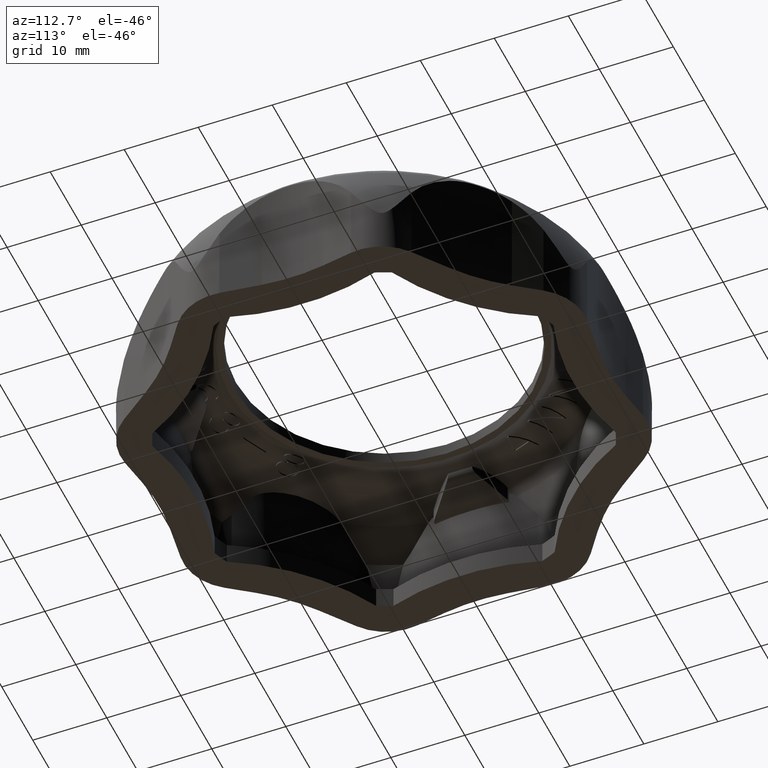
[diagram: clean part render]
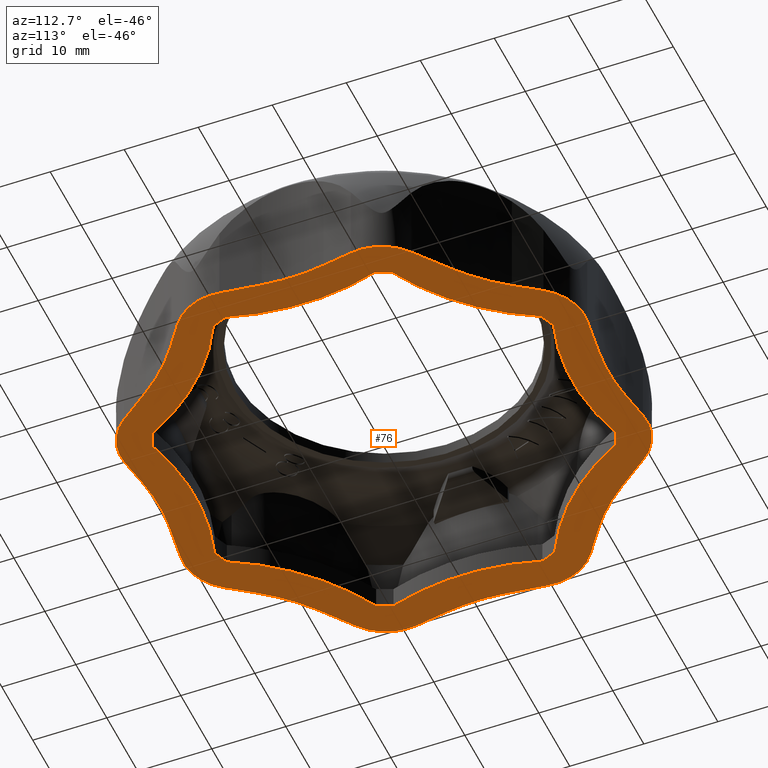
[diagram: same view with one face highlighted and labeled with its STEP entity id]
A machine part, auxiliary view. The second image highlights one B-rep face of the part: STEP entity #76.
In plain terms, the highlighted planar face has unit normal (0, -0, 1).
Its self-contained STEP definition (entity closure, byte-faithful):
#76 = ADVANCED_FACE( '', ( #2431, #2432 ), #2433, .F. );
#2431 = FACE_BOUND( '', #7166, .T. );
#2432 = FACE_OUTER_BOUND( '', #7167, .T. );
#2433 = PLANE( '', #7168 );
#7166 = EDGE_LOOP( '', ( #12139, #12140, #12141, #12142, #12143, #12144, #12145, #12146, #12147, #12148, #12149, #12150, #12151, #12152, #12153, #12154 ) );
#7167 = EDGE_LOOP( '', ( #12155, #12156, #12157, #12158, #12159, #12160, #12161, #12162, #12163, #12164, #12165, #12166, #12167, #12168, #12169, #12170, #12171, #12172, #12173, #12174, #12175, #12176, #12177, #12178, #12179, #12180, #12181, #12182, #12183, #12184, #12185, #12186 ) );
#7168 = AXIS2_PLACEMENT_3D( '', #12187, #12188, #12189 );
#12139 = ORIENTED_EDGE( '', *, *, #33097, .T. );
#12140 = ORIENTED_EDGE( '', *, *, #33098, .T. );
#12141 = ORIENTED_EDGE( '', *, *, #33099, .T. );
#12142 = ORIENTED_EDGE( '', *, *, #33100, .T. );
#12143 = ORIENTED_EDGE( '', *, *, #33101, .T. );
#12144 = ORIENTED_EDGE( '', *, *, #33102, .T. );
#12145 = ORIENTED_EDGE( '', *, *, #33103, .T. );
#12146 = ORIENTED_EDGE( '', *, *, #33104, .T. );
#12147 = ORIENTED_EDGE( '', *, *, #33105, .T. );
#12148 = ORIENTED_EDGE( '', *, *, #33106, .T. );
#12149 = ORIENTED_EDGE( '', *, *, #33107, .T. );
#12150 = ORIENTED_EDGE( '', *, *, #33108, .T. );
#12151 = ORIENTED_EDGE( '', *, *, #33109, .T. );
#12152 = ORIENTED_EDGE( '', *, *, #33110, .T. );
#12153 = ORIENTED_EDGE( '', *, *, #33111, .T. );
#12154 = ORIENTED_EDGE( '', *, *, #33112, .T. );
#12155 = ORIENTED_EDGE( '', *, *, #33113, .F. );
#12156 = ORIENTED_EDGE( '', *, *, #33114, .F. );
#12157 = ORIENTED_EDGE( '', *, *, #33115, .F. );
#12158 = ORIENTED_EDGE( '', *, *, #33116, .F. );
#12159 = ORIENTED_EDGE( '', *, *, #33117, .F. );
#12160 = ORIENTED_EDGE( '', *, *, #33118, .F. );
#12161 = ORIENTED_EDGE( '', *, *, #33119, .F. );
#12162 = ORIENTED_EDGE( '', *, *, #33120, .F. );
#12163 = ORIENTED_EDGE( '', *, *, #33121, .F. );
#12164 = ORIENTED_EDGE( '', *, *, #33122, .F. );
#12165 = ORIENTED_EDGE( '', *, *, #33123, .F. );
#12166 = ORIENTED_EDGE( '', *, *, #33124, .F. );
#12167 = ORIENTED_EDGE( '', *, *, #33125, .F. );
#12168 = ORIENTED_EDGE( '', *, *, #33126, .F. );
#12169 = ORIENTED_EDGE( '', *, *, #33127, .F. );
#12170 = ORIENTED_EDGE( '', *, *, #33128, .F. );
#12171 = ORIENTED_EDGE( '', *, *, #33129, .F. );
#12172 = ORIENTED_EDGE( '', *, *, #33130, .F. );
#12173 = ORIENTED_EDGE( '', *, *, #33131, .F. );
#12174 = ORIENTED_EDGE( '', *, *, #33132, .F. );
#12175 = ORIENTED_EDGE( '', *, *, #33133, .F. );
#12176 = ORIENTED_EDGE( '', *, *, #33134, .F. );
#12177 = ORIENTED_EDGE( '', *, *, #33135, .F. );
#12178 = ORIENTED_EDGE( '', *, *, #33136, .F. );
#12179 = ORIENTED_EDGE( '', *, *, #33137, .F. );
#12180 = ORIENTED_EDGE( '', *, *, #33138, .F. );
#12181 = ORIENTED_EDGE( '', *, *, #33139, .F. );
#12182 = ORIENTED_EDGE( '', *, *, #33140, .F. );
#12183 = ORIENTED_EDGE( '', *, *, #33141, .F. );
#12184 = ORIENTED_EDGE( '', *, *, #33142, .F. );
#12185 = ORIENTED_EDGE( '', *, *, #33143, .F. );
#12186 = ORIENTED_EDGE( '', *, *, #33144, .F. );
#12187 = CARTESIAN_POINT( '', ( 0.000000000000000, 0.000000000000000, -3.88386123990891E-005 ) );
#12188 = DIRECTION( '', ( 2.34318281388423E-017, -5.65694372839885E-017, 1.00000000000000 ) );
#12189 = DIRECTION( '', ( 0.382683432365090, -0.923879532511287, -6.12303176911189E-017 ) );
#33097 = EDGE_CURVE( '', #40121, #40122, #40123, .T. );
#33098 = EDGE_CURVE( '', #40122, #40124, #40125, .F. );
#33099 = EDGE_CURVE( '', #40124, #40126, #40127, .T. );
#33100 = EDGE_CURVE( '', #40126, #40128, #40129, .F. );
#33101 = EDGE_CURVE( '', #40128, #40130, #40131, .T. );
#33102 = EDGE_CURVE( '', #40130, #40132, #40133, .F. );
#33103 = EDGE_CURVE( '', #40132, #40134, #40135, .T. );
#33104 = EDGE_CURVE( '', #40134, #40136, #40137, .F. );
#33105 = EDGE_CURVE( '', #40136, #40138, #40139, .T. );
#33106 = EDGE_CURVE( '', #40138, #40140, #40141, .F. );
#33107 = EDGE_CURVE( '', #40140, #40142, #40143, .T. );
#33108 = EDGE_CURVE( '', #40142, #40144, #40145, .F. );
#33109 = EDGE_CURVE( '', #40144, #40146, #40147, .T. );
#33110 = EDGE_CURVE( '', #40146, #40148, #40149, .F. );
#33111 = EDGE_CURVE( '', #40148, #40150, #40151, .T. );
#33112 = EDGE_CURVE( '', #40150, #40121, #40152, .F. );
#33113 = EDGE_CURVE( '', #40153, #40154, #40155, .T. );
#33114 = EDGE_CURVE( '', #40156, #40153, #40157, .T. );
#33115 = EDGE_CURVE( '', #40158, #40156, #40159, .T. );
#33116 = EDGE_CURVE( '', #40160, #40158, #40161, .F. );
#33117 = EDGE_CURVE( '', #40162, #40160, #40163, .T. );
#33118 = EDGE_CURVE( '', #40164, #40162, #40165, .T. );
#33119 = EDGE_CURVE( '', #40166, #40164, #40167, .T. );
#33120 = EDGE_CURVE( '', #40168, #40166, #40169, .F. );
#33121 = EDGE_CURVE( '', #40170, #40168, #40171, .T. );
#33122 = EDGE_CURVE( '', #40172, #40170, #40173, .T. );
#33123 = EDGE_CURVE( '', #40174, #40172, #40175, .T. );
#33124 = EDGE_CURVE( '', #40176, #40174, #40177, .F. );
#33125 = EDGE_CURVE( '', #40178, #40176, #40179, .T. );
#33126 = EDGE_CURVE( '', #40180, #40178, #40181, .T. );
#33127 = EDGE_CURVE( '', #40182, #40180, #40183, .T. );
#33128 = EDGE_CURVE( '', #40184, #40182, #40185, .F. );
#33129 = EDGE_CURVE( '', #40186, #40184, #40187, .T. );
#33130 = EDGE_CURVE( '', #40188, #40186, #40189, .T. );
#33131 = EDGE_CURVE( '', #40190, #40188, #40191, .T. );
#33132 = EDGE_CURVE( '', #40192, #40190, #40193, .F. );
#33133 = EDGE_CURVE( '', #40194, #40192, #40195, .T. );
#33134 = EDGE_CURVE( '', #40196, #40194, #40197, .T. );
#33135 = EDGE_CURVE( '', #40198, #40196, #40199, .T. );
#33136 = EDGE_CURVE( '', #40200, #40198, #40201, .F. );
#33137 = EDGE_CURVE( '', #40202, #40200, #40203, .T. );
#33138 = EDGE_CURVE( '', #40204, #40202, #40205, .T. );
#33139 = EDGE_CURVE( '', #40206, #40204, #40207, .T. );
#33140 = EDGE_CURVE( '', #40208, #40206, #40209, .F. );
#33141 = EDGE_CURVE( '', #40210, #40208, #40211, .T. );
#33142 = EDGE_CURVE( '', #40212, #40210, #40213, .T. );
#33143 = EDGE_CURVE( '', #40214, #40212, #40215, .T. );
#33144 = EDGE_CURVE( '', #40154, #40214, #40216, .F. );
#40121 = VERTEX_POINT( '', #51906 );
#40122 = VERTEX_POINT( '', #51907 );
#40123 = CIRCLE( '', #51908, 28.9000000000000 );
#40124 = VERTEX_POINT( '', #51909 );
#40125 = CIRCLE( '', #51910, 32.5000000000000 );
#40126 = VERTEX_POINT( '', #51911 );
#40127 = CIRCLE( '', #51912, 28.9000000000000 );
#40128 = VERTEX_POINT( '', #51913 );
#40129 = CIRCLE( '', #51914, 32.5000000000000 );
#40130 = VERTEX_POINT( '', #51915 );
#40131 = CIRCLE( '', #51916, 28.9000000000000 );
#40132 = VERTEX_POINT( '', #51917 );
#40133 = CIRCLE( '', #51918, 32.5000000000000 );
#40134 = VERTEX_POINT( '', #51919 );
#40135 = CIRCLE( '', #51920, 28.9000000000000 );
#40136 = VERTEX_POINT( '', #51921 );
#40137 = CIRCLE( '', #51922, 32.5000000000000 );
#40138 = VERTEX_POINT( '', #51923 );
#40139 = CIRCLE( '', #51924, 28.9000000000000 );
#40140 = VERTEX_POINT( '', #51925 );
#40141 = CIRCLE( '', #51926, 32.5000000000000 );
#40142 = VERTEX_POINT( '', #51927 );
#40143 = CIRCLE( '', #51928, 28.8999999999996 );
#40144 = VERTEX_POINT( '', #51929 );
#40145 = CIRCLE( '', #51930, 32.5000000000000 );
#40146 = VERTEX_POINT( '', #51931 );
#40147 = CIRCLE( '', #51932, 28.9000000000000 );
#40148 = VERTEX_POINT( '', #51933 );
#40149 = CIRCLE( '', #51934, 32.5000000000000 );
#40150 = VERTEX_POINT( '', #51935 );
#40151 = CIRCLE( '', #51936, 28.9000000000000 );
#40152 = CIRCLE( '', #51937, 32.5000000000000 );
#40153 = VERTEX_POINT( '', #51938 );
#40154 = VERTEX_POINT( '', #51939 );
#40155 = LINE( '', #51940, #51941 );
#40156 = VERTEX_POINT( '', #51942 );
#40157 = CIRCLE( '', #51943, 7.30000000000000 );
#40158 = VERTEX_POINT( '', #51944 );
#40159 = LINE( '', #51945, #51946 );
#40160 = VERTEX_POINT( '', #51947 );
#40161 = CIRCLE( '', #51948, 27.7000000000000 );
#40162 = VERTEX_POINT( '', #51949 );
#40163 = LINE( '', #51950, #51951 );
#40164 = VERTEX_POINT( '', #51952 );
#40165 = CIRCLE( '', #51953, 7.30000000000000 );
#40166 = VERTEX_POINT( '', #51954 );
#40167 = LINE( '', #51955, #51956 );
#40168 = VERTEX_POINT( '', #51957 );
#40169 = CIRCLE( '', #51958, 27.7000000000000 );
#40170 = VERTEX_POINT( '', #51959 );
#40171 = LINE( '', #51960, #51961 );
#40172 = VERTEX_POINT( '', #51962 );
#40173 = CIRCLE( '', #51963, 7.30000000000000 );
#40174 = VERTEX_POINT( '', #51964 );
#40175 = LINE( '', #51965, #51966 );
#40176 = VERTEX_POINT( '', #51967 );
#40177 = CIRCLE( '', #51968, 27.7000000000000 );
#40178 = VERTEX_POINT( '', #51969 );
#40179 = LINE( '', #51970, #51971 );
#40180 = VERTEX_POINT( '', #51972 );
#40181 = CIRCLE( '', #51973, 7.30000000000000 );
#40182 = VERTEX_POINT( '', #51974 );
#40183 = LINE( '', #51975, #51976 );
#40184 = VERTEX_POINT( '', #51977 );
#40185 = CIRCLE( '', #51978, 27.7000000000000 );
#40186 = VERTEX_POINT( '', #51979 );
#40187 = LINE( '', #51980, #51981 );
#40188 = VERTEX_POINT( '', #51982 );
#40189 = CIRCLE( '', #51983, 7.30000000000000 );
#40190 = VERTEX_POINT( '', #51984 );
#40191 = LINE( '', #51985, #51986 );
#40192 = VERTEX_POINT( '', #51987 );
#40193 = CIRCLE( '', #51988, 27.7000000000000 );
#40194 = VERTEX_POINT( '', #51989 );
#40195 = LINE( '', #51990, #51991 );
#40196 = VERTEX_POINT( '', #51992 );
#40197 = CIRCLE( '', #51993, 7.30000000000000 );
#40198 = VERTEX_POINT( '', #51994 );
#40199 = LINE( '', #51995, #51996 );
#40200 = VERTEX_POINT( '', #51997 );
#40201 = CIRCLE( '', #51998, 27.7000000000000 );
#40202 = VERTEX_POINT( '', #51999 );
#40203 = LINE( '', #52000, #52001 );
#40204 = VERTEX_POINT( '', #52002 );
#40205 = CIRCLE( '', #52003, 7.30000000000000 );
#40206 = VERTEX_POINT( '', #52004 );
#40207 = LINE( '', #52005, #52006 );
#40208 = VERTEX_POINT( '', #52007 );
#40209 = CIRCLE( '', #52008, 27.7000000000000 );
#40210 = VERTEX_POINT( '', #52009 );
#40211 = LINE( '', #52010, #52011 );
#40212 = VERTEX_POINT( '', #52012 );
#40213 = CIRCLE( '', #52013, 7.30000000000000 );
#40214 = VERTEX_POINT( '', #52014 );
#40215 = LINE( '', #52015, #52016 );
#40216 = CIRCLE( '', #52017, 27.7000000000000 );
#51906 = CARTESIAN_POINT( '', ( 12.0488753506868, 26.2685097175995, -3.88386123990891E-005 ) );
#51907 = CARTESIAN_POINT( '', ( 10.0547998868372, 27.0944828191214, -3.88386123990891E-005 ) );
#51908 = AXIS2_PLACEMENT_3D( '', #81068, #81069, #81070 );
#51909 = CARTESIAN_POINT( '', ( -10.0547999943353, 27.0944827792286, -3.88386123990891E-005 ) );
#51910 = AXIS2_PLACEMENT_3D( '', #81071, #81072, #81073 );
#51911 = CARTESIAN_POINT( '', ( -12.0488752464657, 26.2685097654036, -3.88386123990891E-005 ) );
#51912 = AXIS2_PLACEMENT_3D( '', #81074, #81075, #81076 );
#51913 = CARTESIAN_POINT( '', ( -26.2685097175993, 12.0488753506869, -3.88386123990891E-005 ) );
#51914 = AXIS2_PLACEMENT_3D( '', #81077, #81078, #81079 );
#51915 = CARTESIAN_POINT( '', ( -27.0944828191214, 10.0547998868372, -3.88386123990891E-005 ) );
#51916 = AXIS2_PLACEMENT_3D( '', #81080, #81081, #81082 );
#51917 = CARTESIAN_POINT( '', ( -27.0944827792286, -10.0547999943353, -3.88386123990891E-005 ) );
#51918 = AXIS2_PLACEMENT_3D( '', #81083, #81084, #81085 );
#51919 = CARTESIAN_POINT( '', ( -26.2685097654036, -12.0488752464657, -3.88386123990891E-005 ) );
#51920 = AXIS2_PLACEMENT_3D( '', #81086, #81087, #81088 );
#51921 = CARTESIAN_POINT( '', ( -12.0488753506870, -26.2685097175990, -3.88386123990891E-005 ) );
#51922 = AXIS2_PLACEMENT_3D( '', #81089, #81090, #81091 );
#51923 = CARTESIAN_POINT( '', ( -10.0547998868370, -27.0944828191213, -3.88386123990891E-005 ) );
#51924 = AXIS2_PLACEMENT_3D( '', #81092, #81093, #81094 );
#51925 = CARTESIAN_POINT( '', ( 10.0547999943353, -27.0944827792284, -3.88386123990891E-005 ) );
#51926 = AXIS2_PLACEMENT_3D( '', #81095, #81096, #81097 );
#51927 = CARTESIAN_POINT( '', ( 12.0488752464657, -26.2685097654035, -3.88386123990891E-005 ) );
#51928 = AXIS2_PLACEMENT_3D( '', #81098, #81099, #81100 );
#51929 = CARTESIAN_POINT( '', ( 26.2685097175994, -12.0488753506868, -3.88386123990891E-005 ) );
#51930 = AXIS2_PLACEMENT_3D( '', #81101, #81102, #81103 );
#51931 = CARTESIAN_POINT( '', ( 27.0944828191212, -10.0547998868367, -3.88386123990891E-005 ) );
#51932 = AXIS2_PLACEMENT_3D( '', #81104, #81105, #81106 );
#51933 = CARTESIAN_POINT( '', ( 27.0944827792285, 10.0547999943353, -3.88386123990891E-005 ) );
#51934 = AXIS2_PLACEMENT_3D( '', #81107, #81108, #81109 );
#51935 = CARTESIAN_POINT( '', ( 26.2685097654036, 12.0488752464657, -3.88386123990891E-005 ) );
#51936 = AXIS2_PLACEMENT_3D( '', #81110, #81111, #81112 );
#51937 = AXIS2_PLACEMENT_3D( '', #81113, #81114, #81115 );
#51938 = CARTESIAN_POINT( '', ( 28.5901873501297, 15.6582848198857, -3.88386123990891E-005 ) );
#51939 = CARTESIAN_POINT( '', ( 24.2426124342136, 18.9651718780039, -3.88386123990891E-005 ) );
#51940 = CARTESIAN_POINT( '', ( 18.0235241057808, 23.6955843733243, -3.88386123990891E-005 ) );
#51941 = VECTOR( '', #81116, 1000.00000000000 );
#51942 = CARTESIAN_POINT( '', ( 31.3678887438184, 8.62681377275431, -3.88386123990891E-005 ) );
#51943 = AXIS2_PLACEMENT_3D( '', #81117, #81118, #81119 );
#51944 = CARTESIAN_POINT( '', ( 30.6903740519198, 4.63404008240799, -3.88386123990891E-005 ) );
#51945 = CARTESIAN_POINT( '', ( 29.0671143346068, -4.93225976228185, -3.88386123990891E-005 ) );
#51946 = VECTOR( '', #81120, 1000.00000000000 );
#51947 = CARTESIAN_POINT( '', ( 30.5525172660358, -3.73171361871048, -3.88386123990891E-005 ) );
#51948 = AXIS2_PLACEMENT_3D( '', #81121, #81122, #81123 );
#51949 = CARTESIAN_POINT( '', ( 31.2883947341436, -9.14423601383211, -3.88386123990891E-005 ) );
#51950 = CARTESIAN_POINT( '', ( 29.4998646080560, 4.01075212120420, -3.88386123990891E-005 ) );
#51951 = VECTOR( '', #81124, 1000.00000000000 );
#51952 = CARTESIAN_POINT( '', ( 28.2805254175921, -16.0803682833435, -3.88386123990891E-005 ) );
#51953 = AXIS2_PLACEMENT_3D( '', #81125, #81126, #81127 );
#51954 = CARTESIAN_POINT( '', ( 24.9781323983931, -18.4246107578381, -3.88386123990891E-005 ) );
#51955 = CARTESIAN_POINT( '', ( 17.0659196352484, -24.0411879243867, -3.88386123990891E-005 ) );
#51956 = VECTOR( '', #81128, 1000.00000000000 );
#51957 = CARTESIAN_POINT( '', ( 18.9651718780039, -24.2426124342136, -3.88386123990891E-005 ) );
#51958 = AXIS2_PLACEMENT_3D( '', #81129, #81130, #81131 );
#51959 = CARTESIAN_POINT( '', ( 15.6582848198857, -28.5901873501297, -3.88386123990891E-005 ) );
#51960 = CARTESIAN_POINT( '', ( 23.6955843733242, -18.0235241057808, -3.88386123990891E-005 ) );
#51961 = VECTOR( '', #81132, 1000.00000000000 );
#51962 = CARTESIAN_POINT( '', ( 8.62681377275394, -31.3678887438183, -3.88386123990891E-005 ) );
#51963 = AXIS2_PLACEMENT_3D( '', #81133, #81134, #81135 );
#51964 = CARTESIAN_POINT( '', ( 4.63404008240778, -30.6903740519196, -3.88386123990891E-005 ) );
#51965 = CARTESIAN_POINT( '', ( -4.93225976228196, -29.0671143346070, -3.88386123990891E-005 ) );
#51966 = VECTOR( '', #81136, 1000.00000000000 );
#51967 = CARTESIAN_POINT( '', ( -3.73171361871042, -30.5525172660357, -3.88386123990891E-005 ) );
#51968 = AXIS2_PLACEMENT_3D( '', #81137, #81138, #81139 );
#51969 = CARTESIAN_POINT( '', ( -9.14423601383226, -31.2883947341434, -3.88386123990891E-005 ) );
#51970 = CARTESIAN_POINT( '', ( 4.01075212120412, -29.4998646080560, -3.88386123990891E-005 ) );
#51971 = VECTOR( '', #81140, 1000.00000000000 );
#51972 = CARTESIAN_POINT( '', ( -16.0803682833435, -28.2805254175921, -3.88386123990891E-005 ) );
#51973 = AXIS2_PLACEMENT_3D( '', #81141, #81142, #81143 );
#51974 = CARTESIAN_POINT( '', ( -18.4246107578379, -24.9781323983933, -3.88386123990891E-005 ) );
#51975 = CARTESIAN_POINT( '', ( -24.0411879243869, -17.0659196352479, -3.88386123990891E-005 ) );
#51976 = VECTOR( '', #81144, 1000.00000000000 );
#51977 = CARTESIAN_POINT( '', ( -24.2426124342141, -18.9651718780036, -3.88386123990891E-005 ) );
#51978 = AXIS2_PLACEMENT_3D( '', #81145, #81146, #81147 );
#51979 = CARTESIAN_POINT( '', ( -28.5901873501296, -15.6582848198857, -3.88386123990891E-005 ) );
#51980 = CARTESIAN_POINT( '', ( -18.0235241057806, -23.6955843733243, -3.88386123990891E-005 ) );
#51981 = VECTOR( '', #81148, 1000.00000000000 );
#51982 = CARTESIAN_POINT( '', ( -31.3678887438183, -8.62681377275370, -3.88386123990891E-005 ) );
#51983 = AXIS2_PLACEMENT_3D( '', #81149, #81150, #81151 );
#51984 = CARTESIAN_POINT( '', ( -30.6903740519196, -4.63404008240790, -3.88386123990891E-005 ) );
#51985 = CARTESIAN_POINT( '', ( -29.0671143346066, 4.93225976228246, -3.88386123990891E-005 ) );
#51986 = VECTOR( '', #81152, 1000.00000000000 );
#51987 = CARTESIAN_POINT( '', ( -30.5525172660356, 3.73171361871056, -3.88386123990891E-005 ) );
#51988 = AXIS2_PLACEMENT_3D( '', #81153, #81154, #81155 );
#51989 = CARTESIAN_POINT( '', ( -31.2883947341435, 9.14423601383222, -3.88386123990891E-005 ) );
#51990 = CARTESIAN_POINT( '', ( -29.4998646080557, -4.01075212120463, -3.88386123990891E-005 ) );
#51991 = VECTOR( '', #81156, 1000.00000000000 );
#51992 = CARTESIAN_POINT( '', ( -28.2805254175922, 16.0803682833435, -3.88386123990891E-005 ) );
#51993 = AXIS2_PLACEMENT_3D( '', #81157, #81158, #81159 );
#51994 = CARTESIAN_POINT( '', ( -24.9781323983934, 18.4246107578378, -3.88386123990891E-005 ) );
#51995 = CARTESIAN_POINT( '', ( -17.0659196352480, 24.0411879243869, -3.88386123990891E-005 ) );
#51996 = VECTOR( '', #81160, 1000.00000000000 );
#51997 = CARTESIAN_POINT( '', ( -18.9651718780039, 24.2426124342142, -3.88386123990891E-005 ) );
#51998 = AXIS2_PLACEMENT_3D( '', #81161, #81162, #81163 );
#51999 = CARTESIAN_POINT( '', ( -15.6582848198857, 28.5901873501297, -3.88386123990891E-005 ) );
#52000 = CARTESIAN_POINT( '', ( -23.6955843733246, 18.0235241057807, -3.88386123990891E-005 ) );
#52001 = VECTOR( '', #81164, 1000.00000000000 );
#52002 = CARTESIAN_POINT( '', ( -8.62681377275404, 31.3678887438185, -3.88386123990891E-005 ) );
#52003 = AXIS2_PLACEMENT_3D( '', #81165, #81166, #81167 );
#52004 = CARTESIAN_POINT( '', ( -4.63404008240810, 30.6903740519198, -3.88386123990891E-005 ) );
#52005 = CARTESIAN_POINT( '', ( 4.93225976228215, 29.0671143346071, -3.88386123990891E-005 ) );
#52006 = VECTOR( '', #81168, 1000.00000000000 );
#52007 = CARTESIAN_POINT( '', ( 3.73171361871058, 30.5525172660359, -3.88386123990891E-005 ) );
#52008 = AXIS2_PLACEMENT_3D( '', #81169, #81170, #81171 );
#52009 = CARTESIAN_POINT( '', ( 9.14423601383214, 31.2883947341437, -3.88386123990891E-005 ) );
#52010 = CARTESIAN_POINT( '', ( -4.01075212120449, 29.4998646080559, -3.88386123990891E-005 ) );
#52011 = VECTOR( '', #81172, 1000.00000000000 );
#52012 = CARTESIAN_POINT( '', ( 16.0803682833434, 28.2805254175922, -3.88386123990891E-005 ) );
#52013 = AXIS2_PLACEMENT_3D( '', #81173, #81174, #81175 );
#52014 = CARTESIAN_POINT( '', ( 18.4246107578379, 24.9781323983934, -3.88386123470474E-005 ) );
#52015 = CARTESIAN_POINT( '', ( 24.0411879243867, 17.0659196352484, -3.88386123990891E-005 ) );
#52016 = VECTOR( '', #81176, 1000.00000000000 );
#52017 = AXIS2_PLACEMENT_3D( '', #81177, #81178, #81179 );
#81068 = CARTESIAN_POINT( '', ( 0.000000000000000, 0.000000000000000, -3.88386123990891E-005 ) );
#81069 = DIRECTION( '', ( 2.34318281388423E-017, -5.65694372839885E-017, 1.00000000000000 ) );
#81070 = DIRECTION( '', ( 0.382683432365090, -0.923879532511287, -6.12303176911189E-017 ) );
#81071 = CARTESIAN_POINT( '', ( -1.15058688271441E-007, 58.0000000761077, -3.88386123990891E-005 ) );
#81072 = DIRECTION( '', ( 2.34318281388423E-017, -5.65694372839885E-017, 1.00000000000000 ) );
#81073 = DIRECTION( '', ( 0.382683432365090, -0.923879532511287, -6.12303176911189E-017 ) );
#81074 = CARTESIAN_POINT( '', ( 0.000000000000000, 0.000000000000000, -3.88386123990891E-005 ) );
#81075 = DIRECTION( '', ( 2.34318281388423E-017, -5.65694372839885E-017, 1.00000000000000 ) );
#81076 = DIRECTION( '', ( 0.382683432365090, -0.923879532511287, -6.12303176911189E-017 ) );
#81077 = CARTESIAN_POINT( '', ( -41.0121932812773, 41.0121934439948, -3.88386123990891E-005 ) );
#81078 = DIRECTION( '', ( 2.34318281388423E-017, -5.65694372839885E-017, 1.00000000000000 ) );
#81079 = DIRECTION( '', ( 0.382683432365090, -0.923879532511287, -6.12303176911189E-017 ) );
#81080 = CARTESIAN_POINT( '', ( 0.000000000000000, 0.000000000000000, -3.88386123990891E-005 ) );
#81081 = DIRECTION( '', ( 2.34318281388423E-017, -5.65694372839885E-017, 1.00000000000000 ) );
#81082 = DIRECTION( '', ( 0.382683432365090, -0.923879532511287, -6.12303176911189E-017 ) );
#81083 = CARTESIAN_POINT( '', ( -58.0000000761077, -1.15058657046418E-007, -3.88386123990891E-005 ) );
#81084 = DIRECTION( '', ( 2.34318281388423E-017, -5.65694372839885E-017, 1.00000000000000 ) );
#81085 = DIRECTION( '', ( 0.382683432365090, -0.923879532511287, -6.12303176911189E-017 ) );
#81086 = CARTESIAN_POINT( '', ( 0.000000000000000, 0.000000000000000, -3.88386123990891E-005 ) );
#81087 = DIRECTION( '', ( 2.34318281388423E-017, -5.65694372839885E-017, 1.00000000000000 ) );
#81088 = DIRECTION( '', ( 0.382683432365090, -0.923879532511287, -6.12303176911189E-017 ) );
#81089 = CARTESIAN_POINT( '', ( -41.0121934439947, -41.0121932812772, -3.88386123990891E-005 ) );
#81090 = DIRECTION( '', ( 2.34318281388423E-017, -5.65694372839885E-017, 1.00000000000000 ) );
#81091 = DIRECTION( '', ( 0.382683432365090, -0.923879532511287, -6.12303176911189E-017 ) );
#81092 = CARTESIAN_POINT( '', ( 0.000000000000000, 0.000000000000000, -3.88386123990891E-005 ) );
#81093 = DIRECTION( '', ( 2.34318281388423E-017, -5.65694372839885E-017, 1.00000000000000 ) );
#81094 = DIRECTION( '', ( 0.382683432365090, -0.923879532511287, -6.12303176911189E-017 ) );
#81095 = CARTESIAN_POINT( '', ( 1.15058663985312E-007, -58.0000000761077, -3.88386123990891E-005 ) );
#81096 = DIRECTION( '', ( 2.34318281388423E-017, -5.65694372839885E-017, 1.00000000000000 ) );
#81097 = DIRECTION( '', ( 0.382683432365090, -0.923879532511287, -6.12303176911189E-017 ) );
#81098 = CARTESIAN_POINT( '', ( 0.000000000000000, 0.000000000000000, -3.88386123990891E-005 ) );
#81099 = DIRECTION( '', ( 2.34318281388423E-017, -5.65694372839885E-017, 1.00000000000000 ) );
#81100 = DIRECTION( '', ( 0.382683432365090, -0.923879532511287, -6.12303176911189E-017 ) );
#81101 = CARTESIAN_POINT( '', ( 41.0121932812772, -41.0121934439948, -3.88386123990891E-005 ) );
#81102 = DIRECTION( '', ( 2.34318281388423E-017, -5.65694372839885E-017, 1.00000000000000 ) );
#81103 = DIRECTION( '', ( 0.382683432365090, -0.923879532511287, -6.12303176911189E-017 ) );
#81104 = CARTESIAN_POINT( '', ( 0.000000000000000, 0.000000000000000, -3.88386123990891E-005 ) );
#81105 = DIRECTION( '', ( 2.34318281388423E-017, -5.65694372839885E-017, 1.00000000000000 ) );
#81106 = DIRECTION( '', ( 0.382683432365090, -0.923879532511287, -6.12303176911189E-017 ) );
#81107 = CARTESIAN_POINT( '', ( 58.0000000761077, 1.15058677863100E-007, -3.88386123990891E-005 ) );
#81108 = DIRECTION( '', ( 2.34318281388423E-017, -5.65694372839885E-017, 1.00000000000000 ) );
#81109 = DIRECTION( '', ( 0.382683432365090, -0.923879532511287, -6.12303176911189E-017 ) );
#81110 = CARTESIAN_POINT( '', ( 0.000000000000000, 0.000000000000000, -3.88386123990891E-005 ) );
#81111 = DIRECTION( '', ( 2.34318281388423E-017, -5.65694372839885E-017, 1.00000000000000 ) );
#81112 = DIRECTION( '', ( 0.382683432365090, -0.923879532511287, -6.12303176911189E-017 ) );
#81113 = CARTESIAN_POINT( '', ( 41.0121934439948, 41.0121932812773, -3.88386123990891E-005 ) );
#81114 = DIRECTION( '', ( 2.34318281388423E-017, -5.65694372839885E-017, 1.00000000000000 ) );
#81115 = DIRECTION( '', ( 0.382683432365090, -0.923879532511287, -6.12303176911189E-017 ) );
#81116 = DIRECTION( '', ( -0.795921350298677, 0.605400036454186, 5.28970316861533E-017 ) );
#81117 = CARTESIAN_POINT( '', ( 24.1707670840141, 9.84805896270522, -3.88386123990891E-005 ) );
#81118 = DIRECTION( '', ( 2.34318281388423E-017, -5.65694372839885E-017, 1.00000000000000 ) );
#81119 = DIRECTION( '', ( 0.382683432365090, -0.923879532511287, -6.12303176911189E-017 ) );
#81120 = DIRECTION( '', ( 0.167293861637150, 0.985907076685491, 5.18522075278353E-017 ) );
#81121 = CARTESIAN_POINT( '', ( 58.0000000761077, 1.15058677863100E-007, -3.88386123990891E-005 ) );
#81122 = DIRECTION( '', ( 2.34318281388423E-017, -5.65694372839885E-017, 1.00000000000000 ) );
#81123 = DIRECTION( '', ( 0.382683432365090, -0.923879532511287, -6.12303176911189E-017 ) );
#81124 = DIRECTION( '', ( -0.134718907356283, 0.990883855959279, 5.92104524296301E-017 ) );
#81125 = CARTESIAN_POINT( '', ( 24.0549425856409, -10.1276840375332, -3.88386123990891E-005 ) );
#81126 = DIRECTION( '', ( 2.34318281388423E-017, -5.65694372839885E-017, 1.00000000000000 ) );
#81127 = DIRECTION( '', ( 0.382683432365090, -0.923879532511287, -6.12303176911189E-017 ) );
#81128 = DIRECTION( '', ( 0.815436198056199, 0.578846963281015, 1.36378861353088E-017 ) );
#81129 = CARTESIAN_POINT( '', ( 41.0121932812772, -41.0121934439948, -3.88386123990891E-005 ) );
#81130 = DIRECTION( '', ( 2.34318281388423E-017, -5.65694372839885E-017, 1.00000000000000 ) );
#81131 = DIRECTION( '', ( 0.382683432365090, -0.923879532511287, -6.12303176911189E-017 ) );
#81132 = DIRECTION( '', ( 0.605400036454186, 0.795921350298677, 3.08391932992651E-017 ) );
#81133 = CARTESIAN_POINT( '', ( 9.84805896270519, -24.1707670840141, -3.88386123990891E-005 ) );
#81134 = DIRECTION( '', ( 2.34318281388423E-017, -5.65694372839885E-017, 1.00000000000000 ) );
#81135 = DIRECTION( '', ( 0.382683432365090, -0.923879532511287, -6.12303176911189E-017 ) );
#81136 = DIRECTION( '', ( 0.985907076685491, -0.167293861637148, -3.25653247956417E-017 ) );
#81137 = CARTESIAN_POINT( '', ( 1.15058663985312E-007, -58.0000000761077, -3.88386123990891E-005 ) );
#81138 = DIRECTION( '', ( 2.34318281388423E-017, -5.65694372839885E-017, 1.00000000000000 ) );
#81139 = DIRECTION( '', ( 0.382683432365090, -0.923879532511287, -6.12303176911189E-017 ) );
#81140 = DIRECTION( '', ( 0.990883855959279, 0.134718907356281, -1.55972474377326E-017 ) );
#81141 = CARTESIAN_POINT( '', ( -10.1276840375333, -24.0549425856405, -3.88386123990891E-005 ) );
#81142 = DIRECTION( '', ( 2.34318281388423E-017, -5.65694372839885E-017, 1.00000000000000 ) );
#81143 = DIRECTION( '', ( 0.382683432365090, -0.923879532511287, -6.12303176911189E-017 ) );
#81144 = DIRECTION( '', ( 0.578846963281011, -0.815436198056201, -5.96922094273257E-017 ) );
#81145 = CARTESIAN_POINT( '', ( -41.0121934439948, -41.0121932812772, -3.88386123990891E-005 ) );
#81146 = DIRECTION( '', ( 2.34318281388423E-017, -5.65694372839885E-017, 1.00000000000000 ) );
#81147 = DIRECTION( '', ( 0.382683432365090, -0.923879532511287, -6.12303176911189E-017 ) );
#81148 = DIRECTION( '', ( 0.795921350298682, -0.605400036454181, -5.28970316861531E-017 ) );
#81149 = CARTESIAN_POINT( '', ( -24.1707670840142, -9.84805896270520, -3.88386123990891E-005 ) );
#81150 = DIRECTION( '', ( 2.34318281388423E-017, -5.65694372839885E-017, 1.00000000000000 ) );
#81151 = DIRECTION( '', ( 0.382683432365090, -0.923879532511287, -6.12303176911189E-017 ) );
#81152 = DIRECTION( '', ( -0.167293861637163, -0.985907076685488, -5.18522075278349E-017 ) );
#81153 = CARTESIAN_POINT( '', ( -58.0000000761077, -1.15058657046418E-007, -3.88386123990891E-005 ) );
#81154 = DIRECTION( '', ( 2.34318281388423E-017, -5.65694372839885E-017, 1.00000000000000 ) );
#81155 = DIRECTION( '', ( 0.382683432365090, -0.923879532511287, -6.12303176911189E-017 ) );
#81156 = DIRECTION( '', ( 0.134718907356294, -0.990883855959278, -5.92104524296303E-017 ) );
#81157 = CARTESIAN_POINT( '', ( -24.0549425856409, 10.1276840375333, -3.88386123990891E-005 ) );
#81158 = DIRECTION( '', ( 2.34318281388423E-017, -5.65694372839885E-017, 1.00000000000000 ) );
#81159 = DIRECTION( '', ( 0.382683432365090, -0.923879532511287, -6.12303176911189E-017 ) );
#81160 = DIRECTION( '', ( -0.815436198056206, -0.578846963281004, -1.36378861353080E-017 ) );
#81161 = CARTESIAN_POINT( '', ( -41.0121932812773, 41.0121934439948, -3.88386123990891E-005 ) );
#81162 = DIRECTION( '', ( 2.34318281388423E-017, -5.65694372839885E-017, 1.00000000000000 ) );
#81163 = DIRECTION( '', ( 0.382683432365090, -0.923879532511287, -6.12303176911189E-017 ) );
#81164 = DIRECTION( '', ( -0.605400036454180, -0.795921350298683, -3.08391932992656E-017 ) );
#81165 = CARTESIAN_POINT( '', ( -9.84805896270520, 24.1707670840142, -3.88386123990891E-005 ) );
#81166 = DIRECTION( '', ( 2.34318281388423E-017, -5.65694372839885E-017, 1.00000000000000 ) );
#81167 = DIRECTION( '', ( 0.382683432365090, -0.923879532511287, -6.12303176911189E-017 ) );
#81168 = DIRECTION( '', ( -0.985907076685489, 0.167293861637157, 3.25653247956421E-017 ) );
#81169 = CARTESIAN_POINT( '', ( -1.15058688271441E-007, 58.0000000761077, -3.88386123990891E-005 ) );
#81170 = DIRECTION( '', ( 2.34318281388423E-017, -5.65694372839885E-017, 1.00000000000000 ) );
#81171 = DIRECTION( '', ( 0.382683432365090, -0.923879532511287, -6.12303176911189E-017 ) );
#81172 = DIRECTION( '', ( -0.990883855959277, -0.134718907356296, 1.55972474377317E-017 ) );
#81173 = CARTESIAN_POINT( '', ( 10.1276840375332, 24.0549425856410, -3.88386123990891E-005 ) );
#81174 = DIRECTION( '', ( 2.34318281388423E-017, -5.65694372839885E-017, 1.00000000000000 ) );
#81175 = DIRECTION( '', ( 0.382683432365090, -0.923879532511287, -6.12303176911189E-017 ) );
#81176 = DIRECTION( '', ( -0.578846963281013, 0.815436198056199, 5.96922094273256E-017 ) );
#81177 = CARTESIAN_POINT( '', ( 41.0121934439948, 41.0121932812773, -3.88386123990891E-005 ) );
#81178 = DIRECTION( '', ( 2.34318281388423E-017, -5.65694372839885E-017, 1.00000000000000 ) );
#81179 = DIRECTION( '', ( 0.382683432365090, -0.923879532511287, -6.12303176911189E-017 ) );